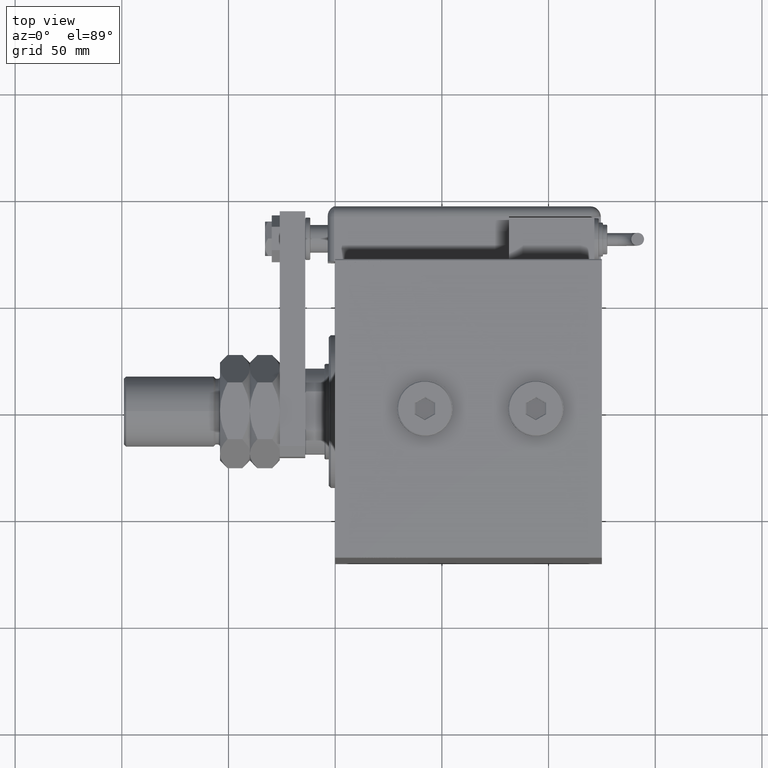
[diagram: clean part render]
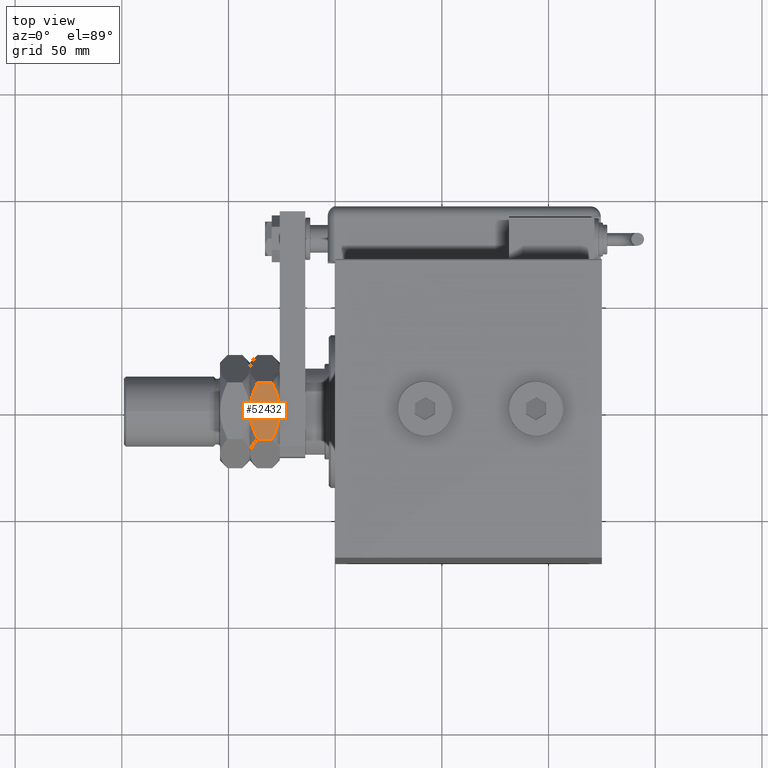
[diagram: same view with one face highlighted and labeled with its STEP entity id]
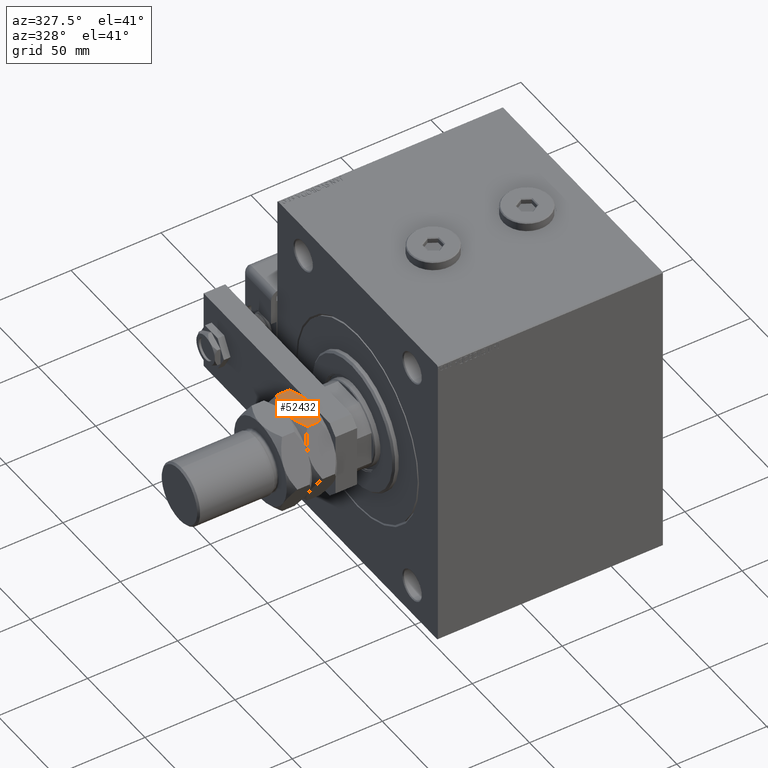
[diagram: same view with one face highlighted and labeled with its STEP entity id]
A machine part, top view. The second image highlights one B-rep face of the part: STEP entity #52432.
A second angle (auxiliary view) of the same face is appended — the face is thin or edge-on in the first view.
In plain terms, the highlighted planar face has unit normal (-0, -0, -1).
Its self-contained STEP definition (entity closure, byte-faithful):
#561 = CARTESIAN_POINT ( 'NONE',  ( 23.00000000000000355, -9.034960763048697885, 12.29444248106046267 ) ) ;
#1067 = CARTESIAN_POINT ( 'NONE',  ( 23.00000000000000355, 12.24914829647811132, 3.043158435281133389 ) ) ;
#3723 = CARTESIAN_POINT ( 'NONE',  ( 23.00000000000000000, 7.944654633855236625, 12.68966158306866987 ) ) ;
#3894 = AXIS2_PLACEMENT_3D ( 'NONE', #7560, #26958, #17399 ) ;
#4063 = CARTESIAN_POINT ( 'NONE',  ( 23.00000000000000355, -11.19569807237882841, 2.561042619401230347 ) ) ;
#4100 = CARTESIAN_POINT ( 'NONE',  ( 23.00000000000000355, -2.335256030405480132, 14.00000000000000355 ) ) ;
#4374 = CARTESIAN_POINT ( 'NONE',  ( 23.00000000000000000, -13.27905619136139670, 3.558112382722774303 ) ) ;
#4684 = CARTESIAN_POINT ( 'NONE',  ( 23.00000000000000711, -0.5827685162635674043, 2.710505431213758312E-17 ) ) ;
#5035 = CARTESIAN_POINT ( 'NONE',  ( 23.00000000000000000, -9.582397350857389640, 12.08857522249926753 ) ) ;
#6395 = CARTESIAN_POINT ( 'NONE',  ( 23.00000000000000000, -13.27905619136139670, 3.558112382722774303 ) ) ;
#7560 = CARTESIAN_POINT ( 'NONE',  ( 23.00000000000000000, -13.27905619136139670, 14.00000000000000000 ) ) ;
#8505 = CARTESIAN_POINT ( 'NONE',  ( 23.00000000000000355, 5.731580876109815037, 13.32034552545418293 ) ) ;
#9775 = CARTESIAN_POINT ( 'NONE',  ( 23.00000000000000000, -5.731580876109816813, 0.6796544745458226178 ) ) ;
#11273 = CARTESIAN_POINT ( 'NONE',  ( 23.00000000000000000, 9.034960763048690779, 1.705557518939540884 ) ) ;
#12981 = CARTESIAN_POINT ( 'NONE',  ( 23.00000000000000355, 12.24893264259405790, 10.95694939166089732 ) ) ;
#13614 = CARTESIAN_POINT ( 'NONE',  ( 23.00000000000000711, -12.24893264259406855, 3.043050608339112006 ) ) ;
#15053 = B_SPLINE_CURVE_WITH_KNOTS ( 'NONE', 3,
 ( #52717, #4684, #62909, #53651, #18988, #38705, #9775, #58118, #28232, #4063, #13614, #4374 ),
 .UNSPECIFIED., .F., .F.,
 ( 4, 2, 2, 2, 2, 4 ),
 ( 0.04844648401189699527, 0.05017495495687852858, 0.05190342590186005495, 0.05536036779182312156, 0.05881730968178618124, 0.06227425157174924786 ),
 .UNSPECIFIED. ) ;
#16403 = LINE ( 'NONE', #41198, #61785 ) ;
#16552 = CARTESIAN_POINT ( 'NONE',  ( 23.00000000000000000, 13.27905619136139137, 10.44188761727723147 ) ) ;
#16687 = CARTESIAN_POINT ( 'NONE',  ( 23.00000000000000000, -13.27905619136139670, 10.44188761727722969 ) ) ;
#17071 = ORIENTED_EDGE ( 'NONE', *, *, #26691, .F. ) ;
#17399 = DIRECTION ( 'NONE',  ( 0.000000000000000000, 0.000000000000000000, 1.000000000000000000 ) ) ;
#18988 = CARTESIAN_POINT ( 'NONE',  ( 23.00000000000000000, -2.901297070256888322, 0.1754240326198526490 ) ) ;
#19308 = B_SPLINE_CURVE_WITH_KNOTS ( 'NONE', 3,
 ( #59916, #1067, #58973, #49404, #11273, #35722, #29710, #20788, #30343, #44319 ),
 .UNSPECIFIED., .F., .F.,
 ( 4, 2, 2, 2, 4 ),
 ( 0.03459390932742917313, 0.03805705299854612172, 0.03978862483410459949, 0.04152019666966307726, 0.04844648401189699527 ),
 .UNSPECIFIED. ) ;
#19512 = DIRECTION ( 'NONE',  ( -0.000000000000000000, -0.000000000000000000, -1.000000000000000000 ) ) ;
#20788 = CARTESIAN_POINT ( 'NONE',  ( 23.00000000000000355, 4.605953494949539540, 0.3597567115847576380 ) ) ;
#21926 = VERTEX_POINT ( 'NONE', #16687 ) ;
#22505 = CARTESIAN_POINT ( 'NONE',  ( 22.99999999999999289, 2.327216729774860937, 13.88976928762942542 ) ) ;
#22972 = CARTESIAN_POINT ( 'NONE',  ( 22.99999999999999645, 0.000000000000000000, 14.00000000000000000 ) ) ;
#23218 = EDGE_CURVE ( 'NONE', #21926, #33716, #38610, .T. ) ;
#23623 = VERTEX_POINT ( 'NONE', #22972 ) ;
#26691 = EDGE_CURVE ( 'NONE', #33104, #33716, #15053, .T. ) ;
#26926 = VECTOR ( 'NONE', #19512, 1000.000000000000000 ) ;
#26958 = DIRECTION ( 'NONE',  ( -1.000000000000000000, 0.000000000000000000, 0.000000000000000000 ) ) ;
#27282 = CARTESIAN_POINT ( 'NONE',  ( 23.00000000000000711, 0.5827685162635629634, 14.00000000000000178 ) ) ;
#28197 = B_SPLINE_CURVE_WITH_KNOTS ( 'NONE', 3,
 ( #57524, #48586, #52752, #5035, #561, #47968, #58464, #28268, #4100, #42885 ),
 .UNSPECIFIED., .F., .F.,
 ( 4, 2, 2, 2, 4 ),
 ( 0.03459390932742917313, 0.03805705299854612866, 0.03978862483410460643, 0.04152019666966308420, 0.04844648401189700221 ),
 .UNSPECIFIED. ) ;
#28232 = CARTESIAN_POINT ( 'NONE',  ( 23.00000000000000355, -9.036340143478451381, 1.691672435289179210 ) ) ;
#28268 = CARTESIAN_POINT ( 'NONE',  ( 23.00000000000000000, -4.605953494949545757, 13.64024328841524181 ) ) ;
#28457 = CARTESIAN_POINT ( 'NONE',  ( 23.00000000000000000, -13.27905619136139670, 14.00000000000000000 ) ) ;
#29710 = CARTESIAN_POINT ( 'NONE',  ( 23.00000000000000711, 7.383193414690649270, 1.150114060298049745 ) ) ;
#30343 = CARTESIAN_POINT ( 'NONE',  ( 23.00000000000000000, 2.335256030405475691, -1.084202172485503818E-16 ) ) ;
#30852 = EDGE_CURVE ( 'NONE', #21926, #23623, #28197, .T. ) ;
#32060 = CARTESIAN_POINT ( 'NONE',  ( 22.99999999999999645, 0.000000000000000000, 14.00000000000000000 ) ) ;
#32367 = CARTESIAN_POINT ( 'NONE',  ( 23.00000000000000000, 13.27905619136139137, 10.44188761727723147 ) ) ;
#33104 = VERTEX_POINT ( 'NONE', #40636 ) ;
#33716 = VERTEX_POINT ( 'NONE', #6395 ) ;
#33790 = ORIENTED_EDGE ( 'NONE', *, *, #23218, .T. ) ;
#34417 = EDGE_CURVE ( 'NONE', #41785, #51955, #16403, .T. ) ;
#35722 = CARTESIAN_POINT ( 'NONE',  ( 23.00000000000000355, 7.935615110598574162, 1.325049712495167231 ) ) ;
#37132 = CARTESIAN_POINT ( 'NONE',  ( 23.00000000000000711, 11.19569807237882308, 11.43895738059878120 ) ) ;
#37668 = EDGE_CURVE ( 'NONE', #51955, #33104, #19308, .T. ) ;
#38075 = EDGE_CURVE ( 'NONE', #23623, #41785, #49633, .T. ) ;
#38610 = LINE ( 'NONE', #28457, #26926 ) ;
#38705 = CARTESIAN_POINT ( 'NONE',  ( 23.00000000000000355, -4.610166311818710838, 0.4304214863932612212 ) ) ;
#39827 = ORIENTED_EDGE ( 'NONE', *, *, #37668, .F. ) ;
#40636 = CARTESIAN_POINT ( 'NONE',  ( 23.00000000000000000, 0.000000000000000000, 0.000000000000000000 ) ) ;
#41198 = CARTESIAN_POINT ( 'NONE',  ( 23.00000000000000000, 13.27905619136139137, 14.00000000000000000 ) ) ;
#41429 = ORIENTED_EDGE ( 'NONE', *, *, #30852, .F. ) ;
#41507 = DIRECTION ( 'NONE',  ( -0.000000000000000000, -0.000000000000000000, -1.000000000000000000 ) ) ;
#41785 = VERTEX_POINT ( 'NONE', #16552 ) ;
#41897 = CARTESIAN_POINT ( 'NONE',  ( 23.00000000000000355, 4.610166311818702845, 13.56957851360674283 ) ) ;
#42576 = EDGE_LOOP ( 'NONE', ( #39827, #61208, #54461, #41429, #33790, #17071 ) ) ;
#42885 = CARTESIAN_POINT ( 'NONE',  ( 22.99999999999999645, 0.000000000000000000, 14.00000000000000000 ) ) ;
#44319 = CARTESIAN_POINT ( 'NONE',  ( 23.00000000000000000, 0.000000000000000000, 0.000000000000000000 ) ) ;
#46677 = CARTESIAN_POINT ( 'NONE',  ( 23.00000000000000000, 1.169461507161060787, 13.97752259012112042 ) ) ;
#47649 = CARTESIAN_POINT ( 'NONE',  ( 23.00000000000000000, 13.27905619136139137, 3.558112382722770750 ) ) ;
#47968 = CARTESIAN_POINT ( 'NONE',  ( 23.00000000000000355, -7.935615110598578603, 12.67495028750483854 ) ) ;
#48586 = CARTESIAN_POINT ( 'NONE',  ( 23.00000000000000000, -12.24914829647811487, 10.95684156471887327 ) ) ;
#49404 = CARTESIAN_POINT ( 'NONE',  ( 22.99999999999999289, 9.582397350857380758, 1.911424777500733141 ) ) ;
#49633 = B_SPLINE_CURVE_WITH_KNOTS ( 'NONE', 3,
 ( #32060, #27282, #46677, #22505, #52064, #41897, #8505, #3723, #61324, #37132, #12981, #32367 ),
 .UNSPECIFIED., .F., .F.,
 ( 4, 2, 2, 2, 2, 4 ),
 ( 0.04844648401189700221, 0.05017495495687852858, 0.05190342590186006189, 0.05536036779182312156, 0.05881730968178618124, 0.06227425157174924786 ),
 .UNSPECIFIED. ) ;
#51102 = PLANE ( 'NONE',  #3894 ) ;
#51955 = VERTEX_POINT ( 'NONE', #47649 ) ;
#52064 = CARTESIAN_POINT ( 'NONE',  ( 23.00000000000000000, 2.901297070256877220, 13.82457596738015049 ) ) ;
#52432 = ADVANCED_FACE ( 'NONE', ( #56524 ), #51102, .F. ) ;
#52717 = CARTESIAN_POINT ( 'NONE',  ( 23.00000000000000000, 0.000000000000000000, 0.000000000000000000 ) ) ;
#52752 = CARTESIAN_POINT ( 'NONE',  ( 23.00000000000000355, -11.19894991158976438, 11.43745981042313353 ) ) ;
#53651 = CARTESIAN_POINT ( 'NONE',  ( 22.99999999999999289, -2.327216729774864490, 0.1102307123705726921 ) ) ;
#54461 = ORIENTED_EDGE ( 'NONE', *, *, #38075, .F. ) ;
#56524 = FACE_OUTER_BOUND ( 'NONE', #42576, .T. ) ;
#57524 = CARTESIAN_POINT ( 'NONE',  ( 23.00000000000000000, -13.27905619136139670, 10.44188761727722969 ) ) ;
#58118 = CARTESIAN_POINT ( 'NONE',  ( 22.99999999999999645, -7.944654633855234849, 1.310338416931336125 ) ) ;
#58464 = CARTESIAN_POINT ( 'NONE',  ( 23.00000000000000355, -7.383193414690654599, 12.84988593970195225 ) ) ;
#58973 = CARTESIAN_POINT ( 'NONE',  ( 23.00000000000000355, 11.19894991158976083, 2.562540189576865135 ) ) ;
#59916 = CARTESIAN_POINT ( 'NONE',  ( 23.00000000000000000, 13.27905619136139137, 3.558112382722770750 ) ) ;
#61208 = ORIENTED_EDGE ( 'NONE', *, *, #34417, .F. ) ;
#61324 = CARTESIAN_POINT ( 'NONE',  ( 23.00000000000000711, 9.036340143478453157, 12.30832756471083123 ) ) ;
#61785 = VECTOR ( 'NONE', #41507, 1000.000000000000000 ) ;
#62909 = CARTESIAN_POINT ( 'NONE',  ( 23.00000000000000000, -1.169461507161065006, 0.02247740987888321648 ) ) ;